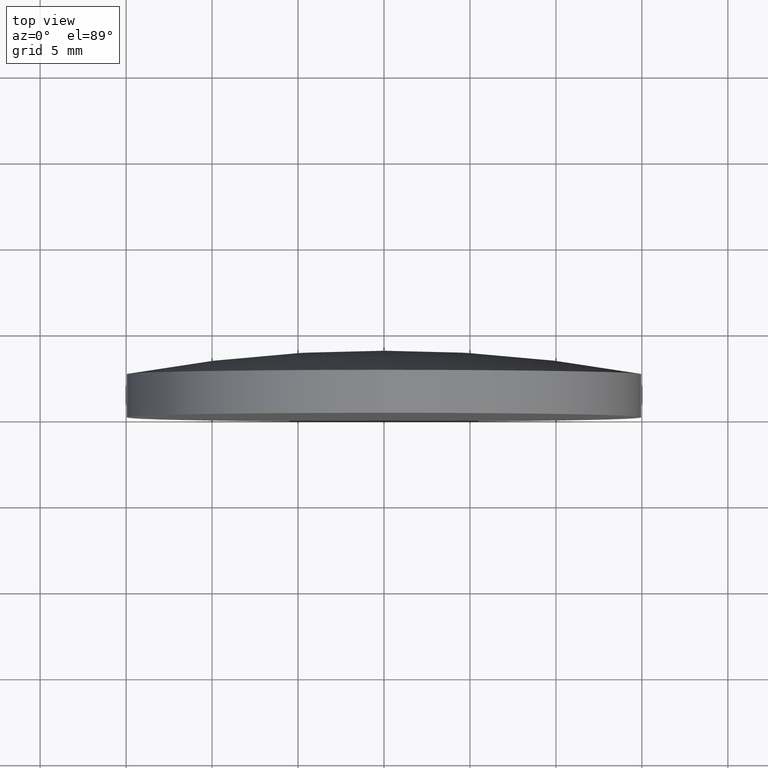
[diagram: clean part render]
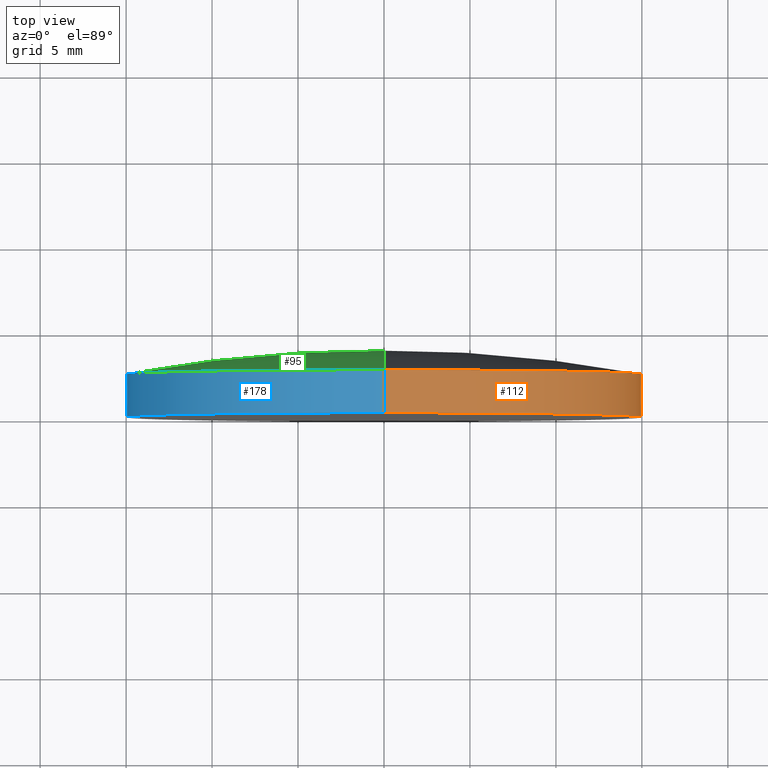
[diagram: same view with three faces highlighted in distinct colors, each labeled with its STEP entity id]
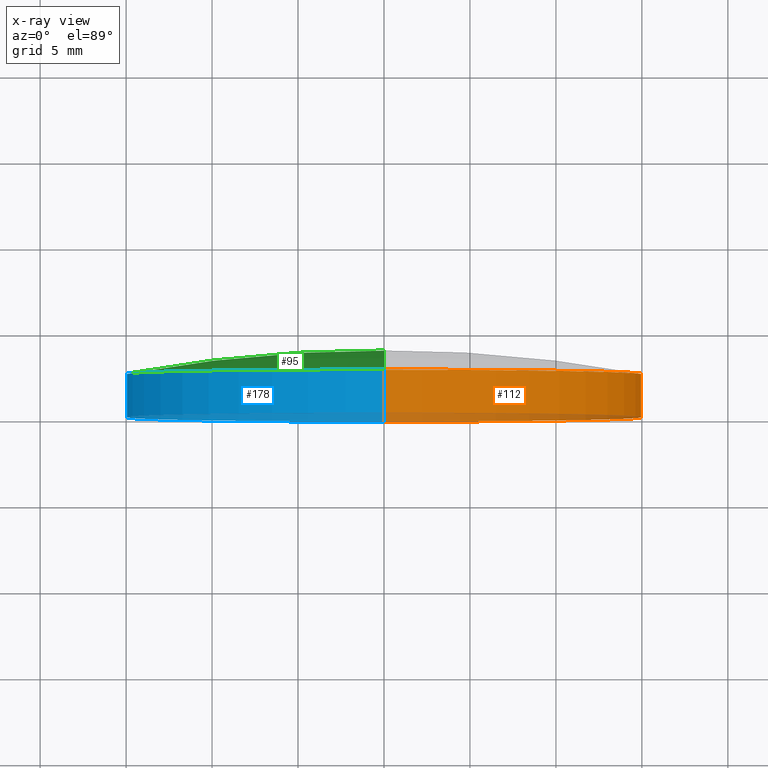
[diagram: x-ray of the same camera — body ghosted, the three highlighted faces saturated]
A machine part, top view with three faces highlighted in distinct colors.
The next image is the same camera in x-ray (body ghosted, the three faces saturated) — at least one of them is partly hidden behind the body in this view.
Their STEP definitions:

[orange] entity #112 — the highlighted cylindrical surface (partial cylindrical patch) has radius 15 mm, axis along (-0, 1, -0).
#7 = VECTOR ( 'NONE', #29, 1000.000000000000000 ) ;
#10 = CARTESIAN_POINT ( 'NONE',  ( 0.000000000000000000, 3.870000000000000107, 15.00000000000000000 ) ) ;
#11 = EDGE_LOOP ( 'NONE', ( #73, #128, #159, #160 ) ) ;
#13 = EDGE_CURVE ( 'NONE', #31, #32, #100, .T. ) ;
#29 = DIRECTION ( 'NONE',  ( -0.000000000000000000, 1.000000000000000000, -0.000000000000000000 ) ) ;
#31 = VERTEX_POINT ( 'NONE', #44 ) ;
#32 = VERTEX_POINT ( 'NONE', #177 ) ;
#35 = DIRECTION ( 'NONE',  ( 0.000000000000000000, 0.000000000000000000, 1.000000000000000000 ) ) ;
#44 = CARTESIAN_POINT ( 'NONE',  ( 1.836970198721029589E-15, -1.734723475976807094E-15, -15.00000000000000000 ) ) ;
#45 = DIRECTION ( 'NONE',  ( -0.000000000000000000, 1.000000000000000000, -0.000000000000000000 ) ) ;
#48 = DIRECTION ( 'NONE',  ( -0.000000000000000000, 1.000000000000000000, -0.000000000000000000 ) ) ;
#54 = CIRCLE ( 'NONE', #174, 15.00000000000000000 ) ;
#65 = CIRCLE ( 'NONE', #183, 15.00000000000000000 ) ;
#71 = EDGE_CURVE ( 'NONE', #94, #32, #54, .T. ) ;
#72 = VERTEX_POINT ( 'NONE', #164 ) ;
#73 = ORIENTED_EDGE ( 'NONE', *, *, #129, .T. ) ;
#82 = CARTESIAN_POINT ( 'NONE',  ( 0.000000000000000000, 3.870000000000000107, 0.000000000000000000 ) ) ;
#94 = VERTEX_POINT ( 'NONE', #163 ) ;
#99 = DIRECTION ( 'NONE',  ( 0.000000000000000000, 0.000000000000000000, 1.000000000000000000 ) ) ;
#100 = LINE ( 'NONE', #109, #7 ) ;
#109 = CARTESIAN_POINT ( 'NONE',  ( 1.836970198721029589E-15, 3.870000000000000107, -15.00000000000000000 ) ) ;
#112 = ADVANCED_FACE ( 'NONE', ( #171 ), #185, .T. ) ;
#117 = LINE ( 'NONE', #10, #119 ) ;
#119 = VECTOR ( 'NONE', #121, 1000.000000000000000 ) ;
#121 = DIRECTION ( 'NONE',  ( -0.000000000000000000, 1.000000000000000000, -0.000000000000000000 ) ) ;
#126 = DIRECTION ( 'NONE',  ( 0.000000000000000000, 0.000000000000000000, 1.000000000000000000 ) ) ;
#128 = ORIENTED_EDGE ( 'NONE', *, *, #13, .T. ) ;
#129 = EDGE_CURVE ( 'NONE', #72, #31, #65, .T. ) ;
#132 = DIRECTION ( 'NONE',  ( -0.000000000000000000, 1.000000000000000000, -0.000000000000000000 ) ) ;
#156 = CARTESIAN_POINT ( 'NONE',  ( 0.000000000000000000, 2.499999999999998224, 0.000000000000000000 ) ) ;
#157 = CARTESIAN_POINT ( 'NONE',  ( 0.000000000000000000, -1.734723475976807094E-15, 0.000000000000000000 ) ) ;
#159 = ORIENTED_EDGE ( 'NONE', *, *, #71, .F. ) ;
#160 = ORIENTED_EDGE ( 'NONE', *, *, #199, .F. ) ;
#163 = CARTESIAN_POINT ( 'NONE',  ( 0.000000000000000000, 2.500000000000000444, 15.00000000000000355 ) ) ;
#164 = CARTESIAN_POINT ( 'NONE',  ( 0.000000000000000000, -1.734723475976807094E-15, 15.00000000000000000 ) ) ;
#171 = FACE_OUTER_BOUND ( 'NONE', #11, .T. ) ;
#174 = AXIS2_PLACEMENT_3D ( 'NONE', #156, #48, #35 ) ;
#177 = CARTESIAN_POINT ( 'NONE',  ( 1.836970198721030378E-15, 2.500000000000000444, -15.00000000000000355 ) ) ;
#183 = AXIS2_PLACEMENT_3D ( 'NONE', #157, #45, #99 ) ;
#185 = CYLINDRICAL_SURFACE ( 'NONE', #200, 15.00000000000000000 ) ;
#199 = EDGE_CURVE ( 'NONE', #72, #94, #117, .T. ) ;
#200 = AXIS2_PLACEMENT_3D ( 'NONE', #82, #132, #126 ) ;

[blue] entity #178 — the highlighted cylindrical surface (partial cylindrical patch) has radius 15 mm, axis along (-0, 1, -0).
#2 = AXIS2_PLACEMENT_3D ( 'NONE', #161, #142, #58 ) ;
#7 = VECTOR ( 'NONE', #29, 1000.000000000000000 ) ;
#10 = CARTESIAN_POINT ( 'NONE',  ( 0.000000000000000000, 3.870000000000000107, 15.00000000000000000 ) ) ;
#13 = EDGE_CURVE ( 'NONE', #31, #32, #100, .T. ) ;
#16 = CIRCLE ( 'NONE', #154, 15.00000000000000000 ) ;
#28 = AXIS2_PLACEMENT_3D ( 'NONE', #201, #133, #50 ) ;
#29 = DIRECTION ( 'NONE',  ( -0.000000000000000000, 1.000000000000000000, -0.000000000000000000 ) ) ;
#31 = VERTEX_POINT ( 'NONE', #44 ) ;
#32 = VERTEX_POINT ( 'NONE', #177 ) ;
#44 = CARTESIAN_POINT ( 'NONE',  ( 1.836970198721029589E-15, -1.734723475976807094E-15, -15.00000000000000000 ) ) ;
#50 = DIRECTION ( 'NONE',  ( 0.000000000000000000, 0.000000000000000000, 1.000000000000000000 ) ) ;
#51 = EDGE_CURVE ( 'NONE', #31, #72, #158, .T. ) ;
#58 = DIRECTION ( 'NONE',  ( 0.000000000000000000, 0.000000000000000000, 1.000000000000000000 ) ) ;
#62 = ORIENTED_EDGE ( 'NONE', *, *, #199, .T. ) ;
#64 = FACE_OUTER_BOUND ( 'NONE', #75, .T. ) ;
#72 = VERTEX_POINT ( 'NONE', #164 ) ;
#75 = EDGE_LOOP ( 'NONE', ( #90, #76, #62, #173 ) ) ;
#76 = ORIENTED_EDGE ( 'NONE', *, *, #51, .T. ) ;
#90 = ORIENTED_EDGE ( 'NONE', *, *, #13, .F. ) ;
#94 = VERTEX_POINT ( 'NONE', #163 ) ;
#100 = LINE ( 'NONE', #109, #7 ) ;
#106 = EDGE_CURVE ( 'NONE', #32, #94, #16, .T. ) ;
#109 = CARTESIAN_POINT ( 'NONE',  ( 1.836970198721029589E-15, 3.870000000000000107, -15.00000000000000000 ) ) ;
#116 = CARTESIAN_POINT ( 'NONE',  ( 0.000000000000000000, 2.499999999999998224, 0.000000000000000000 ) ) ;
#117 = LINE ( 'NONE', #10, #119 ) ;
#119 = VECTOR ( 'NONE', #121, 1000.000000000000000 ) ;
#121 = DIRECTION ( 'NONE',  ( -0.000000000000000000, 1.000000000000000000, -0.000000000000000000 ) ) ;
#127 = DIRECTION ( 'NONE',  ( -0.000000000000000000, 1.000000000000000000, -0.000000000000000000 ) ) ;
#133 = DIRECTION ( 'NONE',  ( -0.000000000000000000, 1.000000000000000000, -0.000000000000000000 ) ) ;
#142 = DIRECTION ( 'NONE',  ( -0.000000000000000000, 1.000000000000000000, -0.000000000000000000 ) ) ;
#146 = CYLINDRICAL_SURFACE ( 'NONE', #28, 15.00000000000000000 ) ;
#147 = DIRECTION ( 'NONE',  ( 0.000000000000000000, 0.000000000000000000, 1.000000000000000000 ) ) ;
#154 = AXIS2_PLACEMENT_3D ( 'NONE', #116, #127, #147 ) ;
#158 = CIRCLE ( 'NONE', #2, 15.00000000000000000 ) ;
#161 = CARTESIAN_POINT ( 'NONE',  ( 0.000000000000000000, -1.734723475976807094E-15, 0.000000000000000000 ) ) ;
#163 = CARTESIAN_POINT ( 'NONE',  ( 0.000000000000000000, 2.500000000000000444, 15.00000000000000355 ) ) ;
#164 = CARTESIAN_POINT ( 'NONE',  ( 0.000000000000000000, -1.734723475976807094E-15, 15.00000000000000000 ) ) ;
#173 = ORIENTED_EDGE ( 'NONE', *, *, #106, .F. ) ;
#177 = CARTESIAN_POINT ( 'NONE',  ( 1.836970198721030378E-15, 2.500000000000000444, -15.00000000000000355 ) ) ;
#178 = ADVANCED_FACE ( 'NONE', ( #64 ), #146, .T. ) ;
#199 = EDGE_CURVE ( 'NONE', #72, #94, #117, .T. ) ;
#201 = CARTESIAN_POINT ( 'NONE',  ( 0.000000000000000000, 3.870000000000000107, 0.000000000000000000 ) ) ;

[green] entity #95 — the highlighted toroidal blend (fillet) surface has major radius 0.0166 mm and minor (blend) radius 82.62 mm.
#1 = FACE_OUTER_BOUND ( 'NONE', #46, .T. ) ;
#12 = VERTEX_POINT ( 'NONE', #33 ) ;
#15 = CARTESIAN_POINT ( 'NONE',  ( 0.000000000000000000, -78.74999833166459950, 0.000000000000000000 ) ) ;
#16 = CIRCLE ( 'NONE', #154, 15.00000000000000000 ) ;
#20 = DIRECTION ( 'NONE',  ( -0.000000000000000000, 1.000000000000000000, -0.000000000000000000 ) ) ;
#25 = AXIS2_PLACEMENT_3D ( 'NONE', #15, #20, #63 ) ;
#32 = VERTEX_POINT ( 'NONE', #177 ) ;
#33 = CARTESIAN_POINT ( 'NONE',  ( 0.000000000000000000, 3.870000000000000107, 0.000000000000000000 ) ) ;
#46 = EDGE_LOOP ( 'NONE', ( #144, #131, #196 ) ) ;
#63 = DIRECTION ( 'NONE',  ( 0.000000000000000000, 0.000000000000000000, 1.000000000000000000 ) ) ;
#78 = EDGE_CURVE ( 'NONE', #94, #12, #111, .T. ) ;
#80 = CARTESIAN_POINT ( 'NONE',  ( 2.033340562693723258E-18, -78.74999833166459950, -0.01660348570795607687 ) ) ;
#84 = TOROIDAL_SURFACE ( 'NONE', #25, 0.01660348570795607687, 82.62000000000000455 ) ;
#92 = CIRCLE ( 'NONE', #162, 82.62000000000000455 ) ;
#94 = VERTEX_POINT ( 'NONE', #163 ) ;
#95 = ADVANCED_FACE ( 'NONE', ( #1 ), #84, .T. ) ;
#97 = CARTESIAN_POINT ( 'NONE',  ( 0.000000000000000000, -78.74999833166459950, 0.01660348570795607687 ) ) ;
#106 = EDGE_CURVE ( 'NONE', #32, #94, #16, .T. ) ;
#111 = CIRCLE ( 'NONE', #194, 82.62000000000000455 ) ;
#114 = DIRECTION ( 'NONE',  ( -1.000000000000000000, 0.000000000000000000, 0.000000000000000000 ) ) ;
#116 = CARTESIAN_POINT ( 'NONE',  ( 0.000000000000000000, 2.499999999999998224, 0.000000000000000000 ) ) ;
#127 = DIRECTION ( 'NONE',  ( -0.000000000000000000, 1.000000000000000000, -0.000000000000000000 ) ) ;
#131 = ORIENTED_EDGE ( 'NONE', *, *, #106, .T. ) ;
#135 = DIRECTION ( 'NONE',  ( 1.224646799147353207E-16, 0.000000000000000000, -1.000000000000000000 ) ) ;
#144 = ORIENTED_EDGE ( 'NONE', *, *, #155, .F. ) ;
#147 = DIRECTION ( 'NONE',  ( 0.000000000000000000, 0.000000000000000000, 1.000000000000000000 ) ) ;
#154 = AXIS2_PLACEMENT_3D ( 'NONE', #116, #127, #147 ) ;
#155 = EDGE_CURVE ( 'NONE', #32, #12, #92, .T. ) ;
#162 = AXIS2_PLACEMENT_3D ( 'NONE', #80, #172, #135 ) ;
#163 = CARTESIAN_POINT ( 'NONE',  ( 0.000000000000000000, 2.500000000000000444, 15.00000000000000355 ) ) ;
#172 = DIRECTION ( 'NONE',  ( 1.000000000000000000, 0.000000000000000000, 1.224646799147353207E-16 ) ) ;
#177 = CARTESIAN_POINT ( 'NONE',  ( 1.836970198721030378E-15, 2.500000000000000444, -15.00000000000000355 ) ) ;
#179 = DIRECTION ( 'NONE',  ( 0.000000000000000000, 0.000000000000000000, 1.000000000000000000 ) ) ;
#194 = AXIS2_PLACEMENT_3D ( 'NONE', #97, #114, #179 ) ;
#196 = ORIENTED_EDGE ( 'NONE', *, *, #78, .T. ) ;